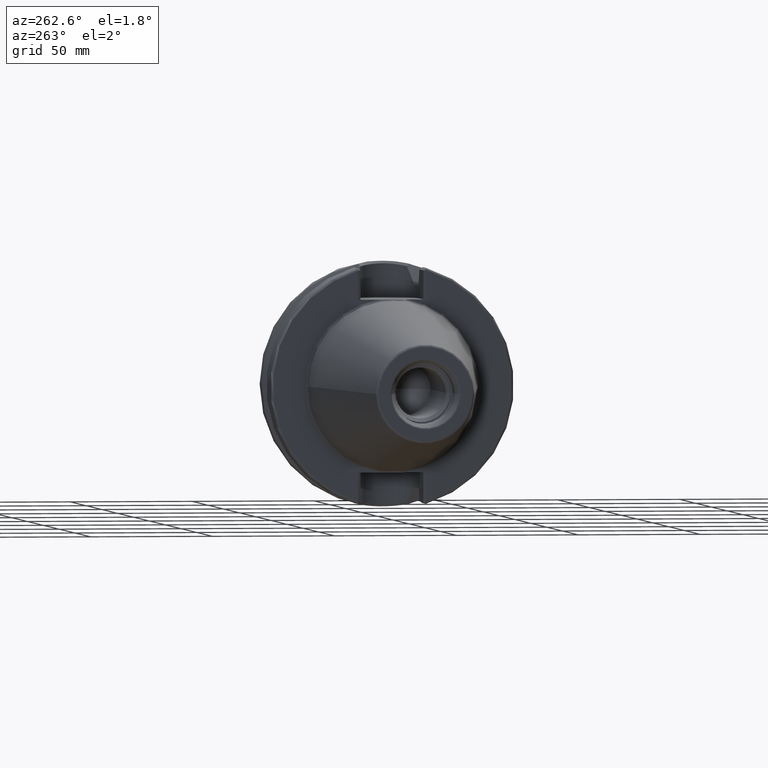
[diagram: clean part render]
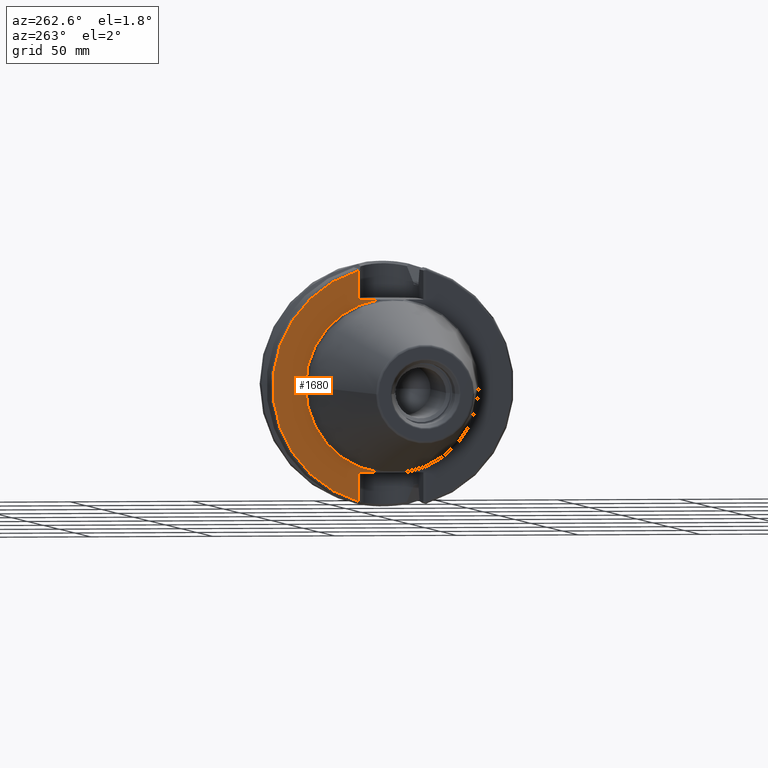
[diagram: same view with one face highlighted and labeled with its STEP entity id]
A machine part, auxiliary view. The second image highlights one B-rep face of the part: STEP entity #1680.
In plain terms, the highlighted planar face has unit normal (1, 0, 0).
Its self-contained STEP definition (entity closure, byte-faithful):
#96=CARTESIAN_POINT('',(3.E0,0.E0,0.E0));
#97=DIRECTION('',(-1.E0,0.E0,0.E0));
#98=DIRECTION('',(0.E0,1.E0,0.E0));
#99=AXIS2_PLACEMENT_3D('',#96,#97,#98);
#127=DIRECTION('',(5.798787724366E-7,5.799135248072E-7,9.999999999997E-1));
#128=VECTOR('',#127,1.177335004622E1);
#129=CARTESIAN_POINT('',(2.999993172884E0,1.390249317248E1,-4.697335004621E1));
#130=LINE('',#129,#128);
#131=DIRECTION('',(-1.226013541637E-6,-1.226161370240E-6,9.999999999985E-1));
#132=VECTOR('',#131,1.177335390080E1);
#133=CARTESIAN_POINT('',(3.E0,1.39025E1,3.52E1));
#134=LINE('',#133,#132);
#588=CARTESIAN_POINT('',(3.E0,0.E0,0.E0));
#589=DIRECTION('',(-1.E0,0.E0,0.E0));
#590=DIRECTION('',(0.E0,2.837969049058E-1,9.588844126201E-1));
#591=AXIS2_PLACEMENT_3D('',#588,#589,#590);
#683=DIRECTION('',(0.E0,1.E0,0.E0));
#684=VECTOR('',#683,8.750740591798E0);
#685=CARTESIAN_POINT('',(3.E0,5.151759408202E0,3.52E1));
#686=LINE('',#685,#684);
#704=CARTESIAN_POINT('',(3.E0,0.E0,0.E0));
#705=DIRECTION('',(1.E0,0.E0,0.E0));
#706=DIRECTION('',(0.E0,1.E0,0.E0));
#707=AXIS2_PLACEMENT_3D('',#704,#705,#706);
#741=DIRECTION('',(0.E0,-1.E0,0.E0));
#742=VECTOR('',#741,8.750740591798E0);
#743=CARTESIAN_POINT('',(3.E0,1.39025E1,-3.52E1));
#744=LINE('',#743,#742);
#1316=CARTESIAN_POINT('',(3.E0,3.5575E1,0.E0));
#1318=VERTEX_POINT('',#1316);
#1386=CARTESIAN_POINT('',(3.E0,5.151759408202E0,3.52E1));
#1387=VERTEX_POINT('',#1386);
#1394=CARTESIAN_POINT('',(3.E0,5.151759408202E0,-3.52E1));
#1395=VERTEX_POINT('',#1394);
#1432=CARTESIAN_POINT('',(3.E0,1.390251954398E1,4.697334463905E1));
#1434=VERTEX_POINT('',#1432);
#1436=CARTESIAN_POINT('',(3.E0,1.39025E1,3.52E1));
#1437=VERTEX_POINT('',#1436);
#1446=CARTESIAN_POINT('',(2.999993172884E0,1.390249317248E1,-4.697335004621E1));
#1447=CARTESIAN_POINT('',(3.E0,1.39025E1,-3.52E1));
#1448=VERTEX_POINT('',#1446);
#1449=VERTEX_POINT('',#1447);
#1660=CARTESIAN_POINT('',(3.E0,0.E0,0.E0));
#1661=DIRECTION('',(1.E0,0.E0,0.E0));
#1662=DIRECTION('',(0.E0,-1.E0,0.E0));
#1663=AXIS2_PLACEMENT_3D('',#1660,#1661,#1662);
#1664=PLANE('',#1663);
#1666=ORIENTED_EDGE('',*,*,#1665,.F.);
#1668=ORIENTED_EDGE('',*,*,#1667,.F.);
#1670=ORIENTED_EDGE('',*,*,#1669,.F.);
#1672=ORIENTED_EDGE('',*,*,#1671,.F.);
#1674=ORIENTED_EDGE('',*,*,#1673,.F.);
#1675=ORIENTED_EDGE('',*,*,#1646,.T.);
#1677=ORIENTED_EDGE('',*,*,#1676,.F.);
#1678=EDGE_LOOP('',(#1666,#1668,#1670,#1672,#1674,#1675,#1677));
#1679=FACE_OUTER_BOUND('',#1678,.F.);
#1680=ADVANCED_FACE('',(#1679),#1664,.F.);
#100=CIRCLE('',#99,3.5575E1);
#592=CIRCLE('',#591,4.89875E1);
#708=CIRCLE('',#707,3.5575E1);
#1646=EDGE_CURVE('',#1318,#1395,#100,.T.);
#1665=EDGE_CURVE('',#1448,#1449,#130,.T.);
#1667=EDGE_CURVE('',#1434,#1448,#592,.T.);
#1669=EDGE_CURVE('',#1437,#1434,#134,.T.);
#1671=EDGE_CURVE('',#1387,#1437,#686,.T.);
#1673=EDGE_CURVE('',#1318,#1387,#708,.T.);
#1676=EDGE_CURVE('',#1449,#1395,#744,.T.);